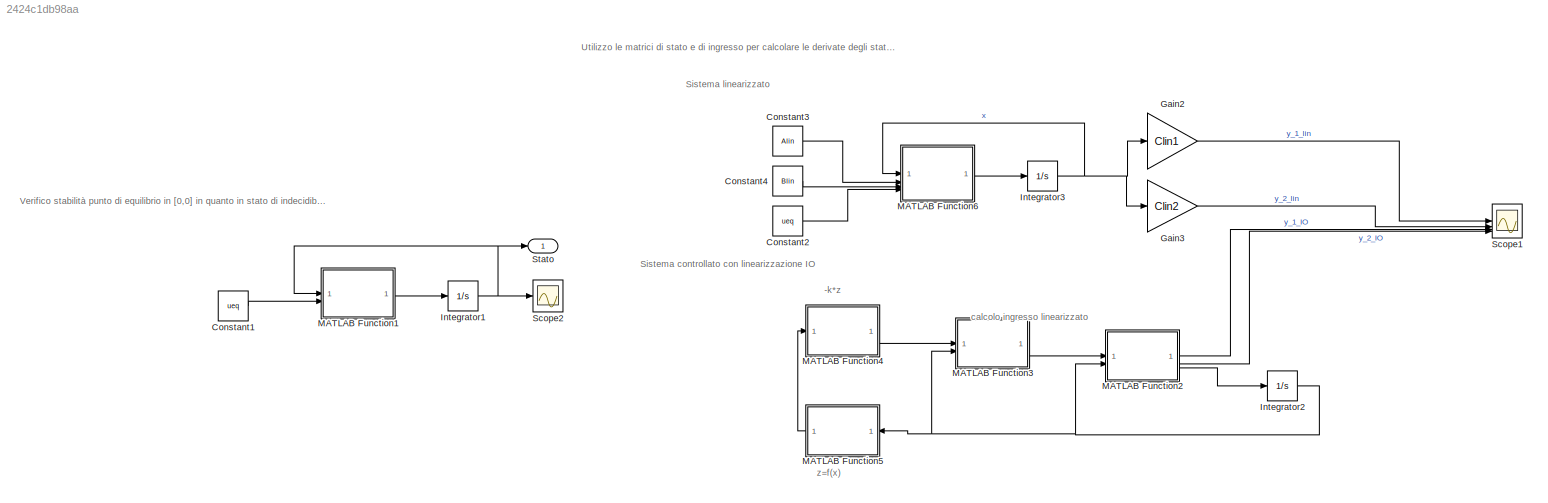
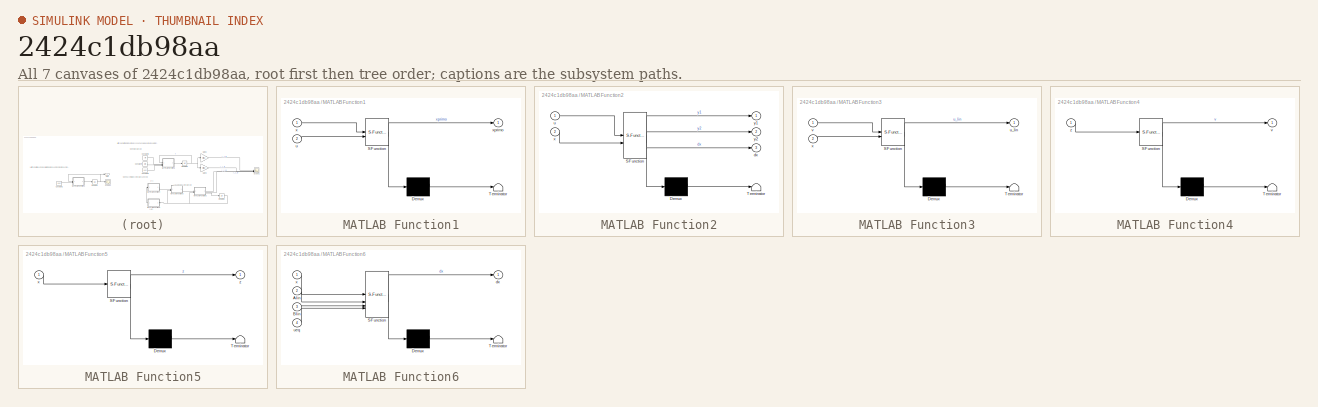
[diagram: thumbnail index - all 7 canvases of the model, root first then tree order]
MODEL slx_2424c1db98aa
KIND model
CONFIG AbsTol = auto
CONFIG EnableMultiTasking = off
CONFIG FixedStep = auto
CONFIG MaxStep = auto
CONFIG MinStep = auto
CONFIG RelTol = 1e-3
CONFIG SampleTimeConstraint = Unconstrained
CONFIG SolverName = VariableStepAuto
CONFIG StartTime = 0.0
CONFIG StopTime = 4
BLOCK [Constant] Constant1
  Value = ueq
BLOCK [Constant] Constant2
  Value = ueq
BLOCK [Constant] Constant3
  Value = Alin
BLOCK [Constant] Constant4
  Value = Blin
BLOCK [Gain] Gain2
  Gain = Clin1
  Multiplication = Matrix(K*u)
BLOCK [Gain] Gain3
  Gain = Clin2
  Multiplication = Matrix(K*u)
BLOCK [Integrator] Integrator1
  InitialCondition = [-0.1;0.1]
BLOCK [Integrator] Integrator2
  InitialCondition = [3;5]
BLOCK [Integrator] Integrator3
  InitialCondition = [3;5]
BLOCK [SubSystem] MATLAB Function1
  ErrorFcn = Stateflow.Translate.translate
  LibrarySourceBlock = simulink/User-Defined\nFunctions/MATLAB Function
  PermitHierarchicalResolution = ExplicitOnly
  SFBlockType = MATLAB Function
  TreatAsAtomicUnit = on
BLOCK [Demux] MATLAB Function1/ Demux 
  Outputs = 1
BLOCK [S-Function] MATLAB Function1/ SFunction 
  EnableBusSupport = on
  FunctionName = sf_sfun
  PortCounts = [2 2]
  SFcnIsStateOwnerBlock = off
  SFunctionDeploymentMode = off
  Tag = Stateflow S-Function 1
BLOCK [Terminator] MATLAB Function1/ Terminator 
BLOCK [Inport] MATLAB Function1/u
  Port = 2
BLOCK [Inport] MATLAB Function1/x
BLOCK [Outport] MATLAB Function1/xprimo
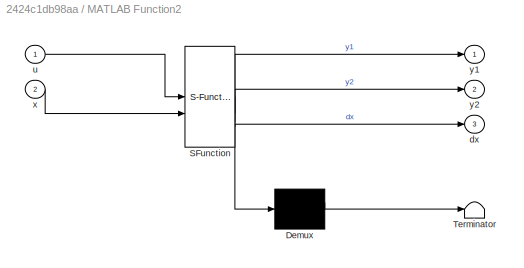
BLOCK [SubSystem] MATLAB Function2
  ErrorFcn = Stateflow.Translate.translate
  PermitHierarchicalResolution = ExplicitOnly
  SFBlockType = MATLAB Function
  TreatAsAtomicUnit = on
BLOCK [Demux] MATLAB Function2/ Demux 
  Outputs = 1
BLOCK [S-Function] MATLAB Function2/ SFunction 
  EnableBusSupport = on
  FunctionName = sf_sfun
  PortCounts = [2 4]
  SFcnIsStateOwnerBlock = off
  SFunctionDeploymentMode = off
  Tag = Stateflow S-Function 3
BLOCK [Terminator] MATLAB Function2/ Terminator 
BLOCK [Outport] MATLAB Function2/dx
  Port = 3
BLOCK [Inport] MATLAB Function2/u
BLOCK [Inport] MATLAB Function2/x
  Port = 2
BLOCK [Outport] MATLAB Function2/y1
BLOCK [Outport] MATLAB Function2/y2
  Port = 2
BLOCK [SubSystem] MATLAB Function3
  ErrorFcn = Stateflow.Translate.translate
  PermitHierarchicalResolution = ExplicitOnly
  SFBlockType = MATLAB Function
  TreatAsAtomicUnit = on
BLOCK [Demux] MATLAB Function3/ Demux 
  Outputs = 1
BLOCK [S-Function] MATLAB Function3/ SFunction 
  EnableBusSupport = on
  FunctionName = sf_sfun
  PortCounts = [2 2]
  SFcnIsStateOwnerBlock = off
  SFunctionDeploymentMode = off
  Tag = Stateflow S-Function 4
BLOCK [Terminator] MATLAB Function3/ Terminator 
BLOCK [Outport] MATLAB Function3/u_lin
BLOCK [Inport] MATLAB Function3/v
BLOCK [Inport] MATLAB Function3/x
  Port = 2
BLOCK [SubSystem] MATLAB Function4
  ErrorFcn = Stateflow.Translate.translate
  PermitHierarchicalResolution = ExplicitOnly
  SFBlockType = MATLAB Function
  TreatAsAtomicUnit = on
BLOCK [Demux] MATLAB Function4/ Demux 
  Outputs = 1
BLOCK [S-Function] MATLAB Function4/ SFunction 
  EnableBusSupport = on
  FunctionName = sf_sfun
  PortCounts = [1 2]
  SFcnIsStateOwnerBlock = off
  SFunctionDeploymentMode = off
  Tag = Stateflow S-Function 5
BLOCK [Terminator] MATLAB Function4/ Terminator 
BLOCK [Outport] MATLAB Function4/v
BLOCK [Inport] MATLAB Function4/z
BLOCK [SubSystem] MATLAB Function5
  ErrorFcn = Stateflow.Translate.translate
  PermitHierarchicalResolution = ExplicitOnly
  SFBlockType = MATLAB Function
  TreatAsAtomicUnit = on
BLOCK [Demux] MATLAB Function5/ Demux 
  Outputs = 1
BLOCK [S-Function] MATLAB Function5/ SFunction 
  EnableBusSupport = on
  FunctionName = sf_sfun
  PortCounts = [1 2]
  SFcnIsStateOwnerBlock = off
  SFunctionDeploymentMode = off
  Tag = Stateflow S-Function 6
BLOCK [Terminator] MATLAB Function5/ Terminator 
BLOCK [Inport] MATLAB Function5/x
BLOCK [Outport] MATLAB Function5/z
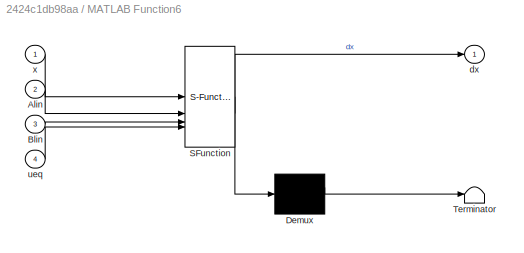
BLOCK [SubSystem] MATLAB Function6
  ErrorFcn = Stateflow.Translate.translate
  PermitHierarchicalResolution = ExplicitOnly
  SFBlockType = MATLAB Function
  TreatAsAtomicUnit = on
BLOCK [Demux] MATLAB Function6/ Demux 
  Outputs = 1
BLOCK [S-Function] MATLAB Function6/ SFunction 
  EnableBusSupport = on
  FunctionName = sf_sfun
  PortCounts = [4 2]
  SFcnIsStateOwnerBlock = off
  SFunctionDeploymentMode = off
  Tag = Stateflow S-Function 7
BLOCK [Terminator] MATLAB Function6/ Terminator 
BLOCK [Inport] MATLAB Function6/Alin
  Port = 2
BLOCK [Inport] MATLAB Function6/Blin
  Port = 3
BLOCK [Outport] MATLAB Function6/dx
BLOCK [Inport] MATLAB Function6/ueq
  Port = 4
BLOCK [Inport] MATLAB Function6/x
BLOCK [Scope] Scope1
  Floating = off
  NumInputPorts = 4
  ScopeSpecificationString = Simulink.scopes.TimeScopeBlockCfg('CurrentConfiguration', extmgr.ConfigurationSet(extmgr.Configuration('Core','General UI',true,'FigureColor',[1 1 1]),extmgr.Configuration('Core','Source UI',true),extmgr.Configuration('Sources','WiredSimulink',true,'DataLoggingVariableName','ScopeData2'),extmgr.Configuration('Visuals','Time Domain',true,'SerializedDisplays',{struct('MinYLimReal','-10.02721','MaxYL...<+2054ch>
BLOCK [Scope] Scope2
  Floating = off
  NumInputPorts = 1
  ScopeSpecificationString = Simulink.scopes.TimeScopeBlockCfg('CurrentConfiguration', extmgr.ConfigurationSet(extmgr.Configuration('Core','General UI',true),extmgr.Configuration('Core','Source UI',true),extmgr.Configuration('Sources','WiredSimulink',true,'DataLoggingVariableName','ScopeData1'),extmgr.Configuration('Visuals','Time Domain',true,'SerializedDisplays',{struct('MinYLimReal','-0.12956','MaxYLimReal','0.12551','YLab...<+1477ch>
BLOCK [Outport] Stato
ANNOTATION (root): -k*z
ANNOTATION (root): Utilizzo le matrici di stato e di ingresso per calcolare le derivate degli stati e successivamente le uscite linearizzate
ANNOTATION (root): calcolo ingresso linearizzato
ANNOTATION (root): Sistema controllato con linearizzazione IO
ANNOTATION (root): Sistema linearizzato
ANNOTATION (root): Verifico stabilità punto di equilibrio in [0,0] in quanto in stato di indecidibilità
ANNOTATION (root): z=f(x)
LINE Constant1:1 -> MATLAB Function1:2
LINE Constant2:1 -> MATLAB Function6:4
LINE Constant3:1 -> MATLAB Function6:2
LINE Constant4:1 -> MATLAB Function6:3
LINE Gain2:1 -> Scope1:1
LINE Gain3:1 -> Scope1:2
NET Integrator1:1 -> MATLAB Function1:1, Scope2:1, Stato:1
NET Integrator2:1 -> MATLAB Function2:2, MATLAB Function3:2, MATLAB Function5:1
NET Integrator3:1 -> Gain2:1, Gain3:1, MATLAB Function6:1
LINE MATLAB Function1:1 -> Integrator1:1
LINE MATLAB Function2:1 -> Scope1:3
LINE MATLAB Function2:2 -> Scope1:4
LINE MATLAB Function2:3 -> Integrator2:1
LINE MATLAB Function3:1 -> MATLAB Function2:1
LINE MATLAB Function4:1 -> MATLAB Function3:1
LINE MATLAB Function5:1 -> MATLAB Function4:1
LINE MATLAB Function6:1 -> Integrator3:1
note: NET lines group one-source signal fan-out (src -> all destinations, sorted); 1:1 wires keep LINE
CHART MATLAB Function1 states=1 transitions=1
  STATE_LABEL 'eML_blk_kernel()'
  STATE_LABEL 'SCRIPT:\nfunction xprimo = fcn(x,u)\nx1=x(1);\nx2=x(2);\nu=0;\nxprimo = [ 3*(x1.^2+x1).*x2;\n          -4.*x2+x1-x2.*u+3.*u];\n'
CHART MATLAB Function2 states=1 transitions=1
  STATE_LABEL 'eML_blk_kernel()'
  STATE_LABEL 'SCRIPT:\nfunction [y1,y2,dx] = fcn(u,x)\n\nx1 = x(1);\nx2 = x(2);\ndx = [3*(x1^2+x1)*x2; -4*x2+x1-x2*u+3*u];\ny1 = 5*x2;\ny2 = 2*x1;'
CHART MATLAB Function3 states=1 transitions=1
  STATE_LABEL 'eML_blk_kernel()'
  STATE_LABEL 'SCRIPT:\nfunction u_lin  = fcn(v,x)\n\nx1 = x(1);\nx2 = x(2);\nu_lin =  ((6*x1^2 + 6*x1)*(x1 - 4*x2)- v + 2*x2^2*(6*x1 + 3)*(3*x1^2 + 3*x1))/((6*x1^2 + 6*x1)*(x2 - 3));'
CHART MATLAB Function4 states=1 transitions=1
  STATE_LABEL 'eML_blk_kernel()'
  STATE_LABEL 'SCRIPT:\nfunction v  = fcn(z)\n\nz1 = z(1);\nz2 = z(2);\nK = [12.5,7.5];\nv = -K(1)*z1-K(2)*z2; % -K*z'
CHART MATLAB Function5 states=1 transitions=1
  STATE_LABEL 'eML_blk_kernel()'
  STATE_LABEL 'SCRIPT:\nfunction z  = fcn(x)\n\nx1 = x(1);\nx2 = x(2);\nz = [2*x1; 2*x2*(3*x1^2 + 3*x1)];'
CHART MATLAB Function6 states=1 transitions=1
  STATE_LABEL 'eML_blk_kernel()'
  STATE_LABEL 'SCRIPT:\nfunction dx = fcn(x, Alin, Blin, ueq)\n\n\ndx = Alin*x +Blin*ueq;\n'
CHART  states=0 transitions=0
CHART  states=0 transitions=0
CHART  states=0 transitions=0
CHART  states=0 transitions=0
CHART  states=0 transitions=0
CHART  states=0 transitions=0
